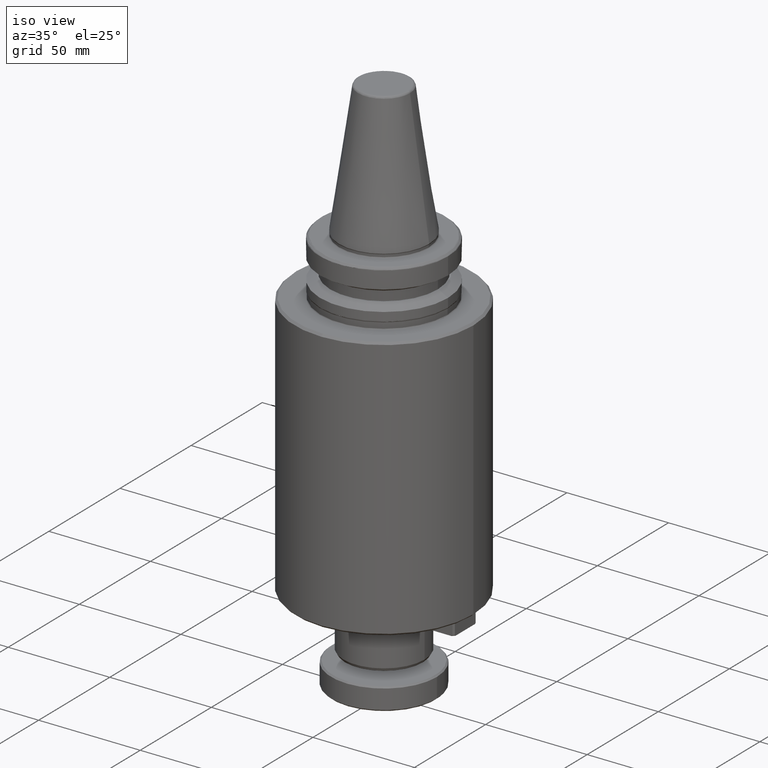
[diagram: clean part render]
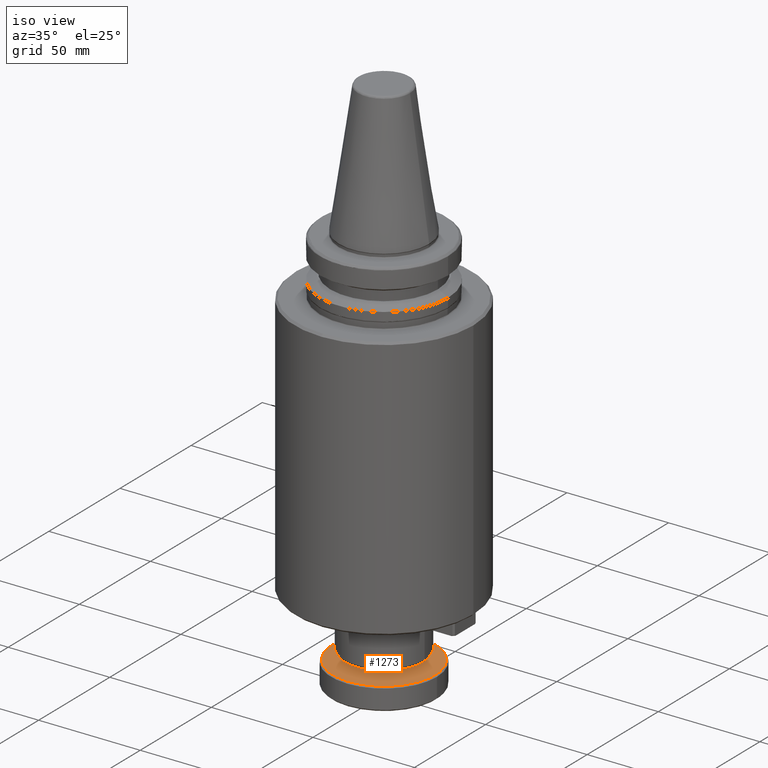
[diagram: same view with one face highlighted and labeled with its STEP entity id]
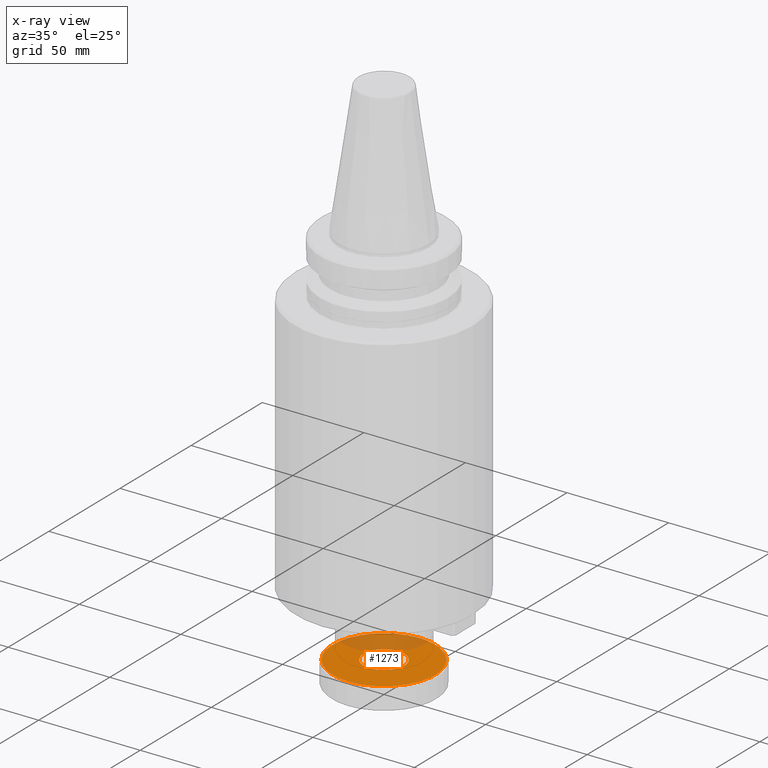
[diagram: x-ray of the same camera — body ghosted, the highlighted face saturated]
A machine part, iso view. The second image highlights one B-rep face of the part: STEP entity #1273.
The next image is the same camera in x-ray: the body ghosted, the highlighted face saturated — about 26% of this face is hidden behind the body in this view.
In plain terms, the highlighted planar face has unit normal (0, 0, -1).
Its self-contained STEP definition (entity closure, byte-faithful):
#120 = DIRECTION ( 'NONE',  ( 0.0000000000000000000, 5.337610695313252400E-016, -1.000000000000000000 ) ) ;
#132 = CIRCLE ( 'NONE', #947, 9.999999999999998200 ) ;
#208 = CARTESIAN_POINT ( 'NONE',  ( -9.999999999999998200, 1.224646799147353100E-015, -191.0000000000000000 ) ) ;
#259 = ORIENTED_EDGE ( 'NONE', *, *, #1009, .F. ) ;
#276 = CARTESIAN_POINT ( 'NONE',  ( -9.999999999999998200, 0.0000000000000000000, -191.0000000000000000 ) ) ;
#365 = DIRECTION ( 'NONE',  ( -1.000000000000000000, 0.0000000000000000000, -0.0000000000000000000 ) ) ;
#386 = VERTEX_POINT ( 'NONE', #3292 ) ;
#482 = EDGE_CURVE ( 'NONE', #3225, #2331, #3583, .T. ) ;
#563 = PLANE ( 'NONE',  #1076 ) ;
#639 = ORIENTED_EDGE ( 'NONE', *, *, #1308, .F. ) ;
#644 = DIRECTION ( 'NONE',  ( 0.0000000000000000000, 0.0000000000000000000, -1.000000000000000000 ) ) ;
#947 = AXIS2_PLACEMENT_3D ( 'NONE', #3288, #1709, #1114 ) ;
#993 = EDGE_CURVE ( 'NONE', #2746, #386, #2751, .T. ) ;
#1009 = EDGE_CURVE ( 'NONE', #2331, #3225, #132, .T. ) ;
#1076 = AXIS2_PLACEMENT_3D ( 'NONE', #276, #644, #365 ) ;
#1114 = DIRECTION ( 'NONE',  ( 1.000000000000000000, 0.0000000000000000000, 0.0000000000000000000 ) ) ;
#1141 = DIRECTION ( 'NONE',  ( 0.0000000000000000000, 1.000000000000000000, 0.0000000000000000000 ) ) ;
#1227 = CARTESIAN_POINT ( 'NONE',  ( 3.141219039812961400E-015, -25.30000000000000400, -191.0000000000000000 ) ) ;
#1243 = DIRECTION ( 'NONE',  ( 0.0000000000000000000, 1.000000000000000000, 0.0000000000000000000 ) ) ;
#1272 = FACE_BOUND ( 'NONE', #1463, .T. ) ;
#1273 = ADVANCED_FACE ( 'NONE', ( #1765, #1272 ), #563, .F. ) ;
#1308 = EDGE_CURVE ( 'NONE', #386, #2746, #1445, .T. ) ;
#1405 = CARTESIAN_POINT ( 'NONE',  ( 0.0000000000000000000, -3.736327486719309900E-016, -191.0000000000000000 ) ) ;
#1445 = CIRCLE ( 'NONE', #1846, 25.30000000000000400 ) ;
#1463 = EDGE_LOOP ( 'NONE', ( #259, #2287 ) ) ;
#1709 = DIRECTION ( 'NONE',  ( 0.0000000000000000000, 0.0000000000000000000, 1.000000000000000000 ) ) ;
#1765 = FACE_OUTER_BOUND ( 'NONE', #2317, .T. ) ;
#1846 = AXIS2_PLACEMENT_3D ( 'NONE', #2976, #120, #1243 ) ;
#2000 = AXIS2_PLACEMENT_3D ( 'NONE', #1405, #3048, #1141 ) ;
#2010 = CARTESIAN_POINT ( 'NONE',  ( 9.999999999999998200, 0.0000000000000000000, -191.0000000000000000 ) ) ;
#2287 = ORIENTED_EDGE ( 'NONE', *, *, #482, .F. ) ;
#2317 = EDGE_LOOP ( 'NONE', ( #639, #2777 ) ) ;
#2331 = VERTEX_POINT ( 'NONE', #2010 ) ;
#2448 = AXIS2_PLACEMENT_3D ( 'NONE', #3179, #2453, #3535 ) ;
#2453 = DIRECTION ( 'NONE',  ( 0.0000000000000000000, 0.0000000000000000000, 1.000000000000000000 ) ) ;
#2746 = VERTEX_POINT ( 'NONE', #1227 ) ;
#2751 = CIRCLE ( 'NONE', #2000, 25.30000000000000400 ) ;
#2777 = ORIENTED_EDGE ( 'NONE', *, *, #993, .F. ) ;
#2976 = CARTESIAN_POINT ( 'NONE',  ( 0.0000000000000000000, -3.736327486719309900E-016, -191.0000000000000000 ) ) ;
#3048 = DIRECTION ( 'NONE',  ( 0.0000000000000000000, 5.337610695313252400E-016, -1.000000000000000000 ) ) ;
#3179 = CARTESIAN_POINT ( 'NONE',  ( 0.0000000000000000000, 0.0000000000000000000, -191.0000000000000000 ) ) ;
#3225 = VERTEX_POINT ( 'NONE', #208 ) ;
#3288 = CARTESIAN_POINT ( 'NONE',  ( 0.0000000000000000000, 0.0000000000000000000, -191.0000000000000000 ) ) ;
#3292 = CARTESIAN_POINT ( 'NONE',  ( 0.0000000000000000000, 25.30000000000000400, -191.0000000000000000 ) ) ;
#3535 = DIRECTION ( 'NONE',  ( 1.000000000000000000, 0.0000000000000000000, 0.0000000000000000000 ) ) ;
#3583 = CIRCLE ( 'NONE', #2448, 9.999999999999998200 ) ;